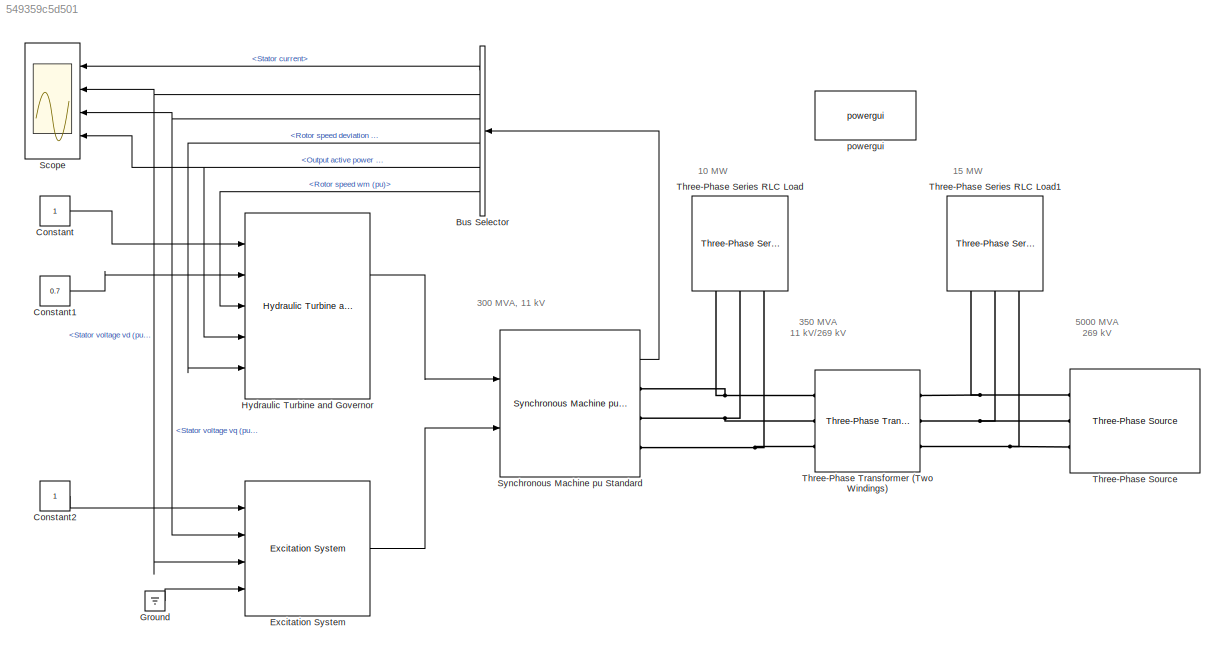
MODEL slx_549359c5d501
KIND model
CONFIG AbsTol = auto
CONFIG EnableMultiTasking = off
CONFIG FixedStep = auto
CONFIG MaxStep = auto
CONFIG MinStep = auto
CONFIG RelTol = 1e-3
CONFIG SampleTimeConstraint = Unconstrained
CONFIG Solver = VariableStepAuto
CONFIG SolverName = VariableStepAuto
CONFIG StartTime = 0.0
CONFIG StopTime = 0.1
BLOCK [BusSelector] Bus Selector
  OutputSignals = Stator current,dq0 components.Stator voltage  vd (pu),dq0 components.Stator voltage  vq (pu),Mechanical.Rotor speed deviation  dw (pu),Output active power   Peo (pu),Mechanical.Rotor speed  wm  (pu)
  Ports = [1, 6]
BLOCK [Constant] Constant
BLOCK [Constant] Constant1
  Value = 0.7
BLOCK [Constant] Constant2
BLOCK [Reference] Excitation System  REF=sps_avr/Excitation System
  Ports = [4, 1]
  SourceBlock = sps_avr/Excitation System
  SourceProductBaseCode = MT,PS
  SourceType = Excitation System
BLOCK [Ground] Ground
BLOCK [Reference] Hydraulic Turbine and Governor  REF=powerlib/Machines/Hydraulic Turbine
and Governor
  Ports = [5, 2]
  SourceBlock = powerlib/Machines/Hydraulic Turbine\nand Governor
  SourceProductBaseCode = PS
  SourceType = Hydraulic Turbine and Governor
BLOCK [Scope] Scope
  Floating = off
  NumInputPorts = 4
  Ports = [4]
  ScopeSpecificationString = Simulink.scopes.TimeScopeBlockCfg('CurrentConfiguration', extmgr.ConfigurationSet(extmgr.Configuration('Core','General UI',true,'FigureColor',[1 1 1]),extmgr.Configuration('Core','Source UI',true),extmgr.Configuration('Sources','WiredSimulink',true),extmgr.Configuration('Visuals','Time Domain',true,'SerializedDisplays',{struct('MinYLimReal','-8.07157','MaxYLimReal','9.40286','YLabelReal','','MinYL...<+4344ch>
BLOCK [Reference] Synchronous Machine pu Standard  REF=powerlib/Machines/Synchronous Machine
pu Standard
  Ports = [2, 1, 0, 0, 0, 0, 3]
  SourceBlock = powerlib/Machines/Synchronous Machine\npu Standard
  SourceProductBaseCode = PS
  SourceType = Synchronous Machine
BLOCK [Reference] Three-Phase Series RLC Load  REF=powerlib/Elements/Three-Phase
Series RLC Load
  AttributesFormatString = \n
  NameLocation = right
  Ports = [0, 0, 0, 0, 0, 3]
  SourceBlock = powerlib/Elements/Three-Phase\nSeries RLC Load
  SourceProductBaseCode = PS
  SourceType = Three-Phase Series RLC Load
BLOCK [Reference] Three-Phase Series RLC Load1  REF=powerlib/Elements/Three-Phase
Series RLC Load
  AttributesFormatString = \n
  NameLocation = right
  Ports = [0, 0, 0, 0, 0, 3]
  SourceBlock = powerlib/Elements/Three-Phase\nSeries RLC Load
  SourceProductBaseCode = PS
  SourceType = Three-Phase Series RLC Load
BLOCK [Reference] Three-Phase Source  REF=powerlib/Electrical
Sources/Three-Phase Source
  Ports = [0, 0, 0, 0, 0, 0, 3]
  SourceBlock = powerlib/Electrical\nSources/Three-Phase Source
  SourceProductBaseCode = PS
  SourceType = Three-Phase Source
BLOCK [Reference] Three-Phase Transformer (Two Windings)  REF=powerlib/Elements/Three-Phase
Transformer
(Two Windings)
  Ports = [0, 0, 0, 0, 0, 3, 3]
  SourceBlock = powerlib/Elements/Three-Phase\nTransformer\n(Two Windings)
  SourceProductBaseCode = PS
  SourceType = Three-Phase Transformer (Two Windings)
BLOCK [Reference] powergui  REF=powerlib/powergui
  Ports = []
  Priority = 1
  SourceBlock = powerlib/powergui
  SourceProductBaseCode = PS
  SourceType = PSB option menu block
ANNOTATION (root): 350 MVA 11 kV/269 kV
ANNOTATION (root): 5000 MVA 269 kV
ANNOTATION (root): 10 MW
ANNOTATION (root): 15 MW
ANNOTATION (root): 300 MVA, 11 kV
LINE Bus Selector:1 -> Scope:1
NET Bus Selector:2 -> Excitation System:3, Scope:2
NET Bus Selector:3 -> Excitation System:2, Scope:3
LINE Bus Selector:4 -> Hydraulic Turbine and Governor:5
NET Bus Selector:5 -> Hydraulic Turbine and Governor:4, Scope:4
LINE Bus Selector:6 -> Hydraulic Turbine and Governor:3
LINE Constant1:1 -> Hydraulic Turbine and Governor:2
LINE Constant2:1 -> Excitation System:1
LINE Constant:1 -> Hydraulic Turbine and Governor:1
LINE Excitation System:1 -> Synchronous Machine pu Standard:2
LINE Ground:1 -> Excitation System:4
LINE Hydraulic Turbine and Governor:1 -> Synchronous Machine pu Standard:1
LINE Synchronous Machine pu Standard:1 -> Bus Selector:1
PNET net1: Synchronous Machine pu Standard:RConn1 -- Three-Phase Series RLC Load:LConn1 -- Three-Phase Transformer (Two Windings):LConn1
PNET net2: Synchronous Machine pu Standard:RConn2 -- Three-Phase Series RLC Load:LConn2 -- Three-Phase Transformer (Two Windings):LConn2
PNET net3: Synchronous Machine pu Standard:RConn3 -- Three-Phase Series RLC Load:LConn3 -- Three-Phase Transformer (Two Windings):LConn3
PNET net4: Three-Phase Series RLC Load1:LConn1 -- Three-Phase Source:RConn1 -- Three-Phase Transformer (Two Windings):RConn1
PNET net5: Three-Phase Series RLC Load1:LConn2 -- Three-Phase Source:RConn2 -- Three-Phase Transformer (Two Windings):RConn2
PNET net6: Three-Phase Series RLC Load1:LConn3 -- Three-Phase Source:RConn3 -- Three-Phase Transformer (Two Windings):RConn3
note: NET lines group one-source signal fan-out (src -> all destinations, sorted); 1:1 wires keep LINE; PNET lines group multi-terminal physical nets as a canonical sorted terminal list (undirected conserving connections); 2-terminal nets keep the pairwise PLINE form
